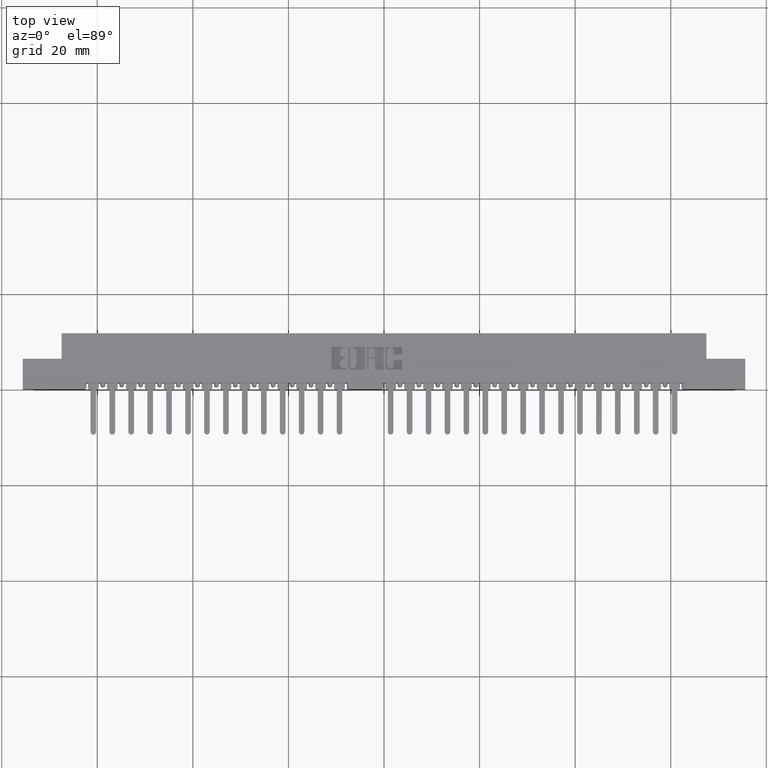
[diagram: clean part render]
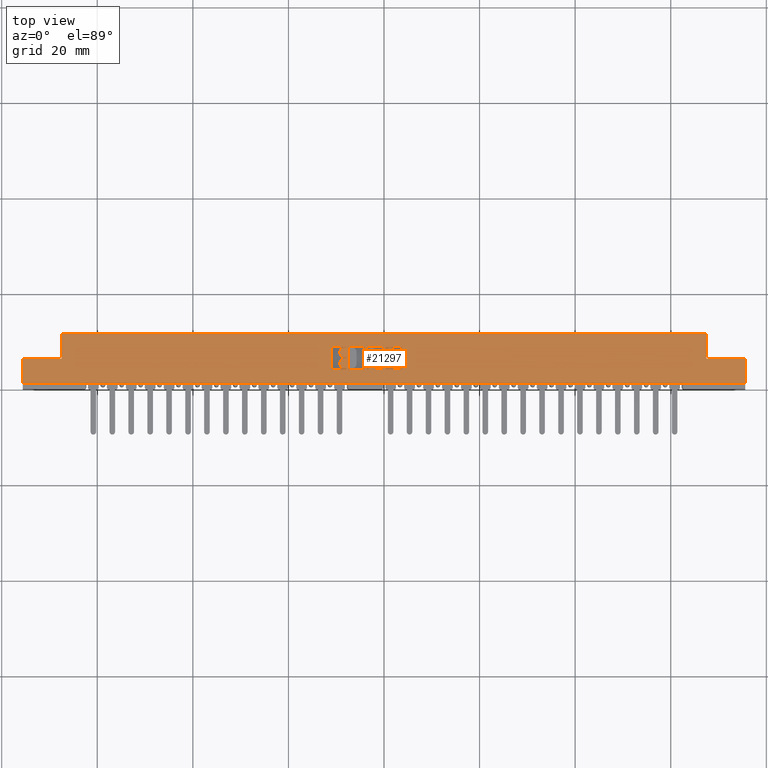
[diagram: same view with one face highlighted and labeled with its STEP entity id]
A machine part, top view. The second image highlights one B-rep face of the part: STEP entity #21297.
In plain terms, the highlighted planar face has unit normal (0, 0, -1).
Its self-contained STEP definition (entity closure, byte-faithful):
#15 = ORIENTED_EDGE ( 'NONE', *, *, #18994, .F. ) ;
#41 = VERTEX_POINT ( 'NONE', #10865 ) ;
#58 = LINE ( 'NONE', #21328, #5222 ) ;
#145 = CARTESIAN_POINT ( 'NONE',  ( 0.5216665538530216300, 8.733562208588935500, 5.486400000000000600 ) ) ;
#152 = ORIENTED_EDGE ( 'NONE', *, *, #569, .F. ) ;
#180 = CARTESIAN_POINT ( 'NONE',  ( 75.60310000000002600, 11.68399999999999900, 5.486400000000000600 ) ) ;
#206 = VERTEX_POINT ( 'NONE', #14117 ) ;
#229 = ORIENTED_EDGE ( 'NONE', *, *, #7270, .F. ) ;
#263 = AXIS2_PLACEMENT_3D ( 'NONE', #3339, #25180, #7731 ) ;
#299 = VECTOR ( 'NONE', #10105, 1000.000000000000000 ) ;
#360 = VERTEX_POINT ( 'NONE', #16790 ) ;
#378 = CARTESIAN_POINT ( 'NONE',  ( -0.0000000000000000000, 3.996519768234372300, 5.486400000000000600 ) ) ;
#398 = LINE ( 'NONE', #5368, #6963 ) ;
#425 = LINE ( 'NONE', #20434, #5958 ) ;
#569 = EDGE_CURVE ( 'NONE', #19284, #17320, #15610, .T. ) ;
#584 = LINE ( 'NONE', #1315, #21974 ) ;
#733 = CIRCLE ( 'NONE', #16205, 0.7978176741662845700 ) ;
#875 = CARTESIAN_POINT ( 'NONE',  ( -1.672332050102226700, 3.996519768234408700, 5.486400000000000600 ) ) ;
#981 = CIRCLE ( 'NONE', #24410, 0.2493180231766915800 ) ;
#1007 = DIRECTION ( 'NONE',  ( 1.000000000000000000, 0.0000000000000000000, 0.0000000000000000000 ) ) ;
#1024 = AXIS2_PLACEMENT_3D ( 'NONE', #10986, #23884, #24071 ) ;
#1062 = CARTESIAN_POINT ( 'NONE',  ( 2.204563210295245000, 7.225188168371333000, 5.486400000000000600 ) ) ;
#1076 = CARTESIAN_POINT ( 'NONE',  ( 3.463619227336394200, 6.015995755964040900, 5.486400000000000600 ) ) ;
#1143 = CARTESIAN_POINT ( 'NONE',  ( 75.60310000000002600, 6.350000000000001400, 5.486400000000000600 ) ) ;
#1150 = VERTEX_POINT ( 'NONE', #19151 ) ;
#1315 = CARTESIAN_POINT ( 'NONE',  ( -0.1639580098834929600, 0.0000000000000000000, 5.486400000000000600 ) ) ;
#1341 = CARTESIAN_POINT ( 'NONE',  ( 3.463619227335827900, 3.996519768234372300, 5.486400000000000600 ) ) ;
#1395 = DIRECTION ( 'NONE',  ( 1.000000000000000000, 0.0000000000000000000, 0.0000000000000000000 ) ) ;
#1426 = EDGE_CURVE ( 'NONE', #24237, #22205, #16189, .T. ) ;
#1442 = VERTEX_POINT ( 'NONE', #19407 ) ;
#1492 = VERTEX_POINT ( 'NONE', #4163 ) ;
#1584 = CIRCLE ( 'NONE', #8804, 0.2493180231764305100 ) ;
#1590 = CARTESIAN_POINT ( 'NONE',  ( -8.061106394003109800, 6.489700000000516100, 5.486400000000000600 ) ) ;
#1717 = ORIENTED_EDGE ( 'NONE', *, *, #18358, .F. ) ;
#1827 = VERTEX_POINT ( 'NONE', #25024 ) ;
#1836 = EDGE_CURVE ( 'NONE', #20401, #9936, #22394, .T. ) ;
#1979 = DIRECTION ( 'NONE',  ( -1.000000000000000000, 0.0000000000000000000, 0.0000000000000000000 ) ) ;
#2046 = EDGE_CURVE ( 'NONE', #12688, #1827, #14142, .T. ) ;
#2083 = ORIENTED_EDGE ( 'NONE', *, *, #27780, .T. ) ;
#2181 = CARTESIAN_POINT ( 'NONE',  ( -7.481441990117083700, 8.733562208588935500, 5.486400000000000600 ) ) ;
#2185 = DIRECTION ( 'NONE',  ( 1.000000000000000000, 0.0000000000000000000, 0.0000000000000000000 ) ) ;
#2188 = ORIENTED_EDGE ( 'NONE', *, *, #21360, .F. ) ;
#2367 = CARTESIAN_POINT ( 'NONE',  ( -7.886583777779455900, 6.489700000000516100, 5.486400000000000600 ) ) ;
#2409 = EDGE_CURVE ( 'NONE', #9628, #22615, #981, .T. ) ;
#2607 = FACE_BOUND ( 'NONE', #13108, .T. ) ;
#2623 = EDGE_CURVE ( 'NONE', #5769, #4653, #7202, .T. ) ;
#2667 = EDGE_CURVE ( 'NONE', #22477, #16025, #17872, .T. ) ;
#2747 = EDGE_CURVE ( 'NONE', #16031, #16907, #21314, .T. ) ;
#2752 = CARTESIAN_POINT ( 'NONE',  ( -0.0000000000000000000, 3.996519768234372300, 5.486400000000000600 ) ) ;
#2789 = CARTESIAN_POINT ( 'NONE',  ( -8.061106397048458700, 3.996519768234436700, 5.486400000000000600 ) ) ;
#2830 = CARTESIAN_POINT ( 'NONE',  ( -8.403918675870199800, 5.143382674847055500, 5.486400000000000600 ) ) ;
#2906 = DIRECTION ( 'NONE',  ( 1.000000000000000000, 0.0000000000000000000, 0.0000000000000000000 ) ) ;
#3105 = CARTESIAN_POINT ( 'NONE',  ( -10.95942841343065100, 0.0000000000000000000, 5.486400000000000600 ) ) ;
#3118 = CIRCLE ( 'NONE', #9012, 0.2493180231766005100 ) ;
#3135 = VERTEX_POINT ( 'NONE', #2181 ) ;
#3259 = DIRECTION ( 'NONE',  ( -0.0000000000000000000, 0.0000000000000000000, 1.000000000000000000 ) ) ;
#3333 = VERTEX_POINT ( 'NONE', #9064 ) ;
#3339 = CARTESIAN_POINT ( 'NONE',  ( 0.5216665538521552100, 4.245837791411063700, 5.486400000000000600 ) ) ;
#3385 = ORIENTED_EDGE ( 'NONE', *, *, #10903, .F. ) ;
#3392 = ORIENTED_EDGE ( 'NONE', *, *, #16788, .F. ) ;
#3400 = DIRECTION ( 'NONE',  ( -0.0000000000000000000, 0.0000000000000000000, 1.000000000000000000 ) ) ;
#3437 = ORIENTED_EDGE ( 'NONE', *, *, #19526, .F. ) ;
#3499 = DIRECTION ( 'NONE',  ( 0.0000000000000000000, 1.000000000000000000, -0.0000000000000000000 ) ) ;
#3575 = LINE ( 'NONE', #3605, #25689 ) ;
#3582 = CARTESIAN_POINT ( 'NONE',  ( 3.712937250513308000, 8.733562208588548300, 5.486400000000000600 ) ) ;
#3605 = CARTESIAN_POINT ( 'NONE',  ( 0.0000000000000000000, 3.996519768234408700, 5.486400000000000600 ) ) ;
#3640 = DIRECTION ( 'NONE',  ( -0.0000000000000000000, 0.0000000000000000000, 1.000000000000000000 ) ) ;
#3765 = ORIENTED_EDGE ( 'NONE', *, *, #18909, .T. ) ;
#3775 = CARTESIAN_POINT ( 'NONE',  ( -7.232123966939525400, 8.733562208588935500, 5.486400000000000600 ) ) ;
#3779 = ORIENTED_EDGE ( 'NONE', *, *, #17030, .F. ) ;
#3803 = DIRECTION ( 'NONE',  ( 1.000000000000000000, 0.0000000000000000000, 0.0000000000000000000 ) ) ;
#3855 = EDGE_CURVE ( 'NONE', #8294, #19284, #6074, .T. ) ;
#3872 = DIRECTION ( 'NONE',  ( -0.0000000000000000000, 0.0000000000000000000, 1.000000000000000000 ) ) ;
#3876 = ORIENTED_EDGE ( 'NONE', *, *, #2409, .F. ) ;
#3897 = CARTESIAN_POINT ( 'NONE',  ( -8.061106394002060000, 8.982880231766030100, 5.486400000000000600 ) ) ;
#3902 = DIRECTION ( 'NONE',  ( 1.000000000000000000, 0.0000000000000000000, 0.0000000000000000000 ) ) ;
#3954 = CARTESIAN_POINT ( 'NONE',  ( 67.46240000000001700, 11.68399999999999900, 5.486400000000000600 ) ) ;
#4012 = CIRCLE ( 'NONE', #17278, 0.2493180231766807300 ) ;
#4163 = CARTESIAN_POINT ( 'NONE',  ( -10.95942841343065100, 4.245837791411063700, 5.486400000000000600 ) ) ;
#4203 = CARTESIAN_POINT ( 'NONE',  ( 1.955245187118763300, 0.0000000000000000000, 5.486400000000000600 ) ) ;
#4233 = ORIENTED_EDGE ( 'NONE', *, *, #7579, .T. ) ;
#4242 = CARTESIAN_POINT ( 'NONE',  ( -8.061106394002060000, 8.808357615542810500, 5.486400000000000600 ) ) ;
#4261 = CARTESIAN_POINT ( 'NONE',  ( 67.46240000000001700, -13.66284510378421000, 5.486400000000000600 ) ) ;
#4290 = CARTESIAN_POINT ( 'NONE',  ( -9.201736350036080500, 7.836017325153202200, 5.486400000000000600 ) ) ;
#4427 = ORIENTED_EDGE ( 'NONE', *, *, #25599, .F. ) ;
#4653 = VERTEX_POINT ( 'NONE', #6472 ) ;
#4670 = ORIENTED_EDGE ( 'NONE', *, *, #25363, .F. ) ;
#4704 = DIRECTION ( 'NONE',  ( -0.0000000000000000000, 0.0000000000000000000, 1.000000000000000000 ) ) ;
#4708 = ORIENTED_EDGE ( 'NONE', *, *, #25853, .F. ) ;
#4718 = DIRECTION ( 'NONE',  ( 1.000000000000000000, 0.0000000000000000000, 0.0000000000000000000 ) ) ;
#4723 = VERTEX_POINT ( 'NONE', #6098 ) ;
#4821 = CARTESIAN_POINT ( 'NONE',  ( 3.463619227336304900, 5.766677732787847800, 5.486400000000000600 ) ) ;
#4942 = DIRECTION ( 'NONE',  ( 1.000000000000000000, 0.0000000000000000000, 0.0000000000000000000 ) ) ;
#4948 = CARTESIAN_POINT ( 'NONE',  ( 3.463619227335827900, 4.245837791411063700, 5.486400000000000600 ) ) ;
#5081 = EDGE_CURVE ( 'NONE', #25212, #1492, #15688, .T. ) ;
#5129 = VECTOR ( 'NONE', #28310, 1000.000000000000000 ) ;
#5135 = AXIS2_PLACEMENT_3D ( 'NONE', #7325, #18032, #15725 ) ;
#5145 = DIRECTION ( 'NONE',  ( 1.000000000000000000, 0.0000000000000000000, 0.0000000000000000000 ) ) ;
#5170 = CARTESIAN_POINT ( 'NONE',  ( -3.255501497273351600, 0.0000000000000000000, 5.486400000000000600 ) ) ;
#5203 = CARTESIAN_POINT ( 'NONE',  ( -9.201736350036080500, 7.462040290389401400, 5.486400000000000600 ) ) ;
#5222 = VECTOR ( 'NONE', #10192, 1000.000000000000000 ) ;
#5354 = CARTESIAN_POINT ( 'NONE',  ( 3.712937250512498000, 4.245837791410886900, 5.486400000000000600 ) ) ;
#5356 = AXIS2_PLACEMENT_3D ( 'NONE', #19827, #26404, #20512 ) ;
#5368 = CARTESIAN_POINT ( 'NONE',  ( -4.040853270279589200, 0.0000000000000000000, 5.486400000000000600 ) ) ;
#5393 = CARTESIAN_POINT ( 'NONE',  ( -75.60309999999999800, 1.295399999999999900, 5.486400000000000600 ) ) ;
#5429 = ORIENTED_EDGE ( 'NONE', *, *, #17255, .F. ) ;
#5449 = AXIS2_PLACEMENT_3D ( 'NONE', #3775, #26068, #21429 ) ;
#5540 = VERTEX_POINT ( 'NONE', #11865 ) ;
#5577 = CARTESIAN_POINT ( 'NONE',  ( 0.6213937631236051700, 5.012490712678305400, 5.486400000000000600 ) ) ;
#5598 = CIRCLE ( 'NONE', #19627, 0.2493180231764244300 ) ;
#5633 = CARTESIAN_POINT ( 'NONE',  ( 3.712937250513308000, 0.0000000000000000000, 5.486400000000000600 ) ) ;
#5712 = ORIENTED_EDGE ( 'NONE', *, *, #27543, .T. ) ;
#5719 = DIRECTION ( 'NONE',  ( 1.000000000000000000, 0.0000000000000000000, 0.0000000000000000000 ) ) ;
#5752 = VECTOR ( 'NONE', #13796, 1000.000000000000000 ) ;
#5769 = VERTEX_POINT ( 'NONE', #26258 ) ;
#5779 = CARTESIAN_POINT ( 'NONE',  ( 1.955245187118763300, 5.766677732787804300, 5.486400000000000600 ) ) ;
#5799 = CIRCLE ( 'NONE', #24362, 0.2493180231766477800 ) ;
#5835 = DIRECTION ( 'NONE',  ( -1.000000000000000000, 0.0000000000000000000, 0.0000000000000000000 ) ) ;
#5868 = LINE ( 'NONE', #9692, #13482 ) ;
#5958 = VECTOR ( 'NONE', #9480, 1000.000000000000000 ) ;
#5981 = DIRECTION ( 'NONE',  ( 1.000000000000000000, 0.0000000000000000000, 0.0000000000000000000 ) ) ;
#6002 = LINE ( 'NONE', #11100, #7039 ) ;
#6074 = CIRCLE ( 'NONE', #18525, 0.1745226162232719200 ) ;
#6098 = CARTESIAN_POINT ( 'NONE',  ( -8.403918675869800100, 8.633834999319486100, 5.486400000000000600 ) ) ;
#6122 = VECTOR ( 'NONE', #8957, 1000.000000000000000 ) ;
#6224 = PLANE ( 'NONE',  #19966 ) ;
#6268 = DIRECTION ( 'NONE',  ( -1.000000000000000000, 0.0000000000000000000, 0.0000000000000000000 ) ) ;
#6316 = EDGE_CURVE ( 'NONE', #20678, #4653, #14988, .T. ) ;
#6325 = CARTESIAN_POINT ( 'NONE',  ( -7.481441990117083700, 4.245837791411063700, 5.486400000000000600 ) ) ;
#6328 = CARTESIAN_POINT ( 'NONE',  ( 0.2723485306754631600, 4.245837791411063700, 5.486400000000000600 ) ) ;
#6390 = VERTEX_POINT ( 'NONE', #27799 ) ;
#6442 = LINE ( 'NONE', #7518, #5752 ) ;
#6472 = CARTESIAN_POINT ( 'NONE',  ( -8.403918675870199800, 4.345565000681637500, 5.486400000000000600 ) ) ;
#6493 = VERTEX_POINT ( 'NONE', #18075 ) ;
#6516 = CIRCLE ( 'NONE', #14411, 0.2493180231775632700 ) ;
#6543 = DIRECTION ( 'NONE',  ( -0.0000000000000000000, 0.0000000000000000000, 1.000000000000000000 ) ) ;
#6687 = DIRECTION ( 'NONE',  ( 1.000000000000000000, 0.0000000000000000000, 0.0000000000000000000 ) ) ;
#6849 = CARTESIAN_POINT ( 'NONE',  ( -0.4132760330599173900, 4.245837791410833600, 5.486400000000000600 ) ) ;
#6858 = DIRECTION ( 'NONE',  ( -0.0000000000000000000, 0.0000000000000000000, 1.000000000000000000 ) ) ;
#6859 = EDGE_CURVE ( 'NONE', #16267, #10057, #23900, .T. ) ;
#6879 = VERTEX_POINT ( 'NONE', #6328 ) ;
#6963 = VECTOR ( 'NONE', #18684, 1000.000000000000000 ) ;
#7039 = VECTOR ( 'NONE', #19637, 1000.000000000000000 ) ;
#7075 = CARTESIAN_POINT ( 'NONE',  ( -75.60309999999999800, 11.68399999999999900, 5.486400000000000600 ) ) ;
#7202 = LINE ( 'NONE', #8027, #19918 ) ;
#7243 = AXIS2_PLACEMENT_3D ( 'NONE', #26554, #11165, #13363 ) ;
#7263 = DIRECTION ( 'NONE',  ( -0.0000000000000000000, 0.0000000000000000000, 1.000000000000000000 ) ) ;
#7270 = EDGE_CURVE ( 'NONE', #11428, #25620, #22843, .T. ) ;
#7325 = CARTESIAN_POINT ( 'NONE',  ( 1.288319475121184600, 5.012490712678305400, 5.486400000000000600 ) ) ;
#7351 = CARTESIAN_POINT ( 'NONE',  ( -8.403918675870848200, 7.462040290389401400, 5.486400000000000600 ) ) ;
#7352 = DIRECTION ( 'NONE',  ( 1.000000000000000000, 0.0000000000000000000, 0.0000000000000000000 ) ) ;
#7502 = ORIENTED_EDGE ( 'NONE', *, *, #13053, .T. ) ;
#7518 = CARTESIAN_POINT ( 'NONE',  ( -9.201736350036080500, 0.0000000000000000000, 5.486400000000000600 ) ) ;
#7557 = DIRECTION ( 'NONE',  ( 1.000000000000000000, 0.0000000000000000000, 0.0000000000000000000 ) ) ;
#7579 = EDGE_CURVE ( 'NONE', #4723, #20884, #733, .T. ) ;
#7694 = DIRECTION ( 'NONE',  ( 0.0000000000000000000, -1.000000000000000000, 0.0000000000000000000 ) ) ;
#7722 = CARTESIAN_POINT ( 'NONE',  ( 75.60309999999999800, 1.295399999999999900, 5.486400000000000600 ) ) ;
#7731 = DIRECTION ( 'NONE',  ( 1.000000000000000000, 0.0000000000000000000, 0.0000000000000000000 ) ) ;
#7884 = CARTESIAN_POINT ( 'NONE',  ( 3.712937250512498000, 0.0000000000000000000, 5.486400000000000600 ) ) ;
#7973 = CARTESIAN_POINT ( 'NONE',  ( 75.60310000000002600, 6.350000000000001400, 5.486400000000000600 ) ) ;
#8007 = DIRECTION ( 'NONE',  ( -0.0000000000000000000, 0.0000000000000000000, 1.000000000000000000 ) ) ;
#8027 = CARTESIAN_POINT ( 'NONE',  ( -5.167589409310488600E-013, 4.345565000682636700, 5.486400000000000600 ) ) ;
#8043 = CARTESIAN_POINT ( 'NONE',  ( 3.463619227335770700, 8.733562208588956800, 5.486400000000000600 ) ) ;
#8053 = EDGE_CURVE ( 'NONE', #12437, #5769, #23486, .T. ) ;
#8215 = CARTESIAN_POINT ( 'NONE',  ( -3.604546729720377500, 4.171042384458057300, 5.486400000000000600 ) ) ;
#8294 = VERTEX_POINT ( 'NONE', #26677 ) ;
#8343 = DIRECTION ( 'NONE',  ( 0.0000000000000000000, -1.000000000000000000, 0.0000000000000000000 ) ) ;
#8355 = LINE ( 'NONE', #20394, #16650 ) ;
#8383 = ORIENTED_EDGE ( 'NONE', *, *, #27153, .F. ) ;
#8389 = CARTESIAN_POINT ( 'NONE',  ( -8.061106394002056400, 8.633834999319486100, 5.486400000000000600 ) ) ;
#8420 = ORIENTED_EDGE ( 'NONE', *, *, #25970, .F. ) ;
#8422 = AXIS2_PLACEMENT_3D ( 'NONE', #4242, #10855, #19865 ) ;
#8466 = LINE ( 'NONE', #5170, #14017 ) ;
#8582 = CARTESIAN_POINT ( 'NONE',  ( 0.0000000000000000000, 8.982880231766495500, 5.486400000000000600 ) ) ;
#8766 = AXIS2_PLACEMENT_3D ( 'NONE', #19768, #13432, #19675 ) ;
#8785 = DIRECTION ( 'NONE',  ( -0.0000000000000000000, -1.000000000000000000, -0.0000000000000000000 ) ) ;
#8786 = ORIENTED_EDGE ( 'NONE', *, *, #25679, .F. ) ;
#8804 = AXIS2_PLACEMENT_3D ( 'NONE', #16398, #11979, #7557 ) ;
#8828 = DIRECTION ( 'NONE',  ( -0.0000000000000000000, 1.000000000000000000, -0.0000000000000000000 ) ) ;
#8957 = DIRECTION ( 'NONE',  ( 0.0000000000000000000, -1.000000000000000000, 0.0000000000000000000 ) ) ;
#8966 = CARTESIAN_POINT ( 'NONE',  ( -7.232123966940392300, 3.996519768234372300, 5.486400000000000600 ) ) ;
#8980 = VECTOR ( 'NONE', #8785, 1000.000000000000000 ) ;
#9012 = AXIS2_PLACEMENT_3D ( 'NONE', #20257, #7263, #4718 ) ;
#9024 = VECTOR ( 'NONE', #20164, 1000.000000000000000 ) ;
#9038 = CARTESIAN_POINT ( 'NONE',  ( -4.290171293456286800, 3.996519768234372300, 5.486400000000000600 ) ) ;
#9064 = CARTESIAN_POINT ( 'NONE',  ( -4.040853270279589200, 4.245837791411063700, 5.486400000000000600 ) ) ;
#9197 = DIRECTION ( 'NONE',  ( 1.000000000000000000, 0.0000000000000000000, 0.0000000000000000000 ) ) ;
#9217 = FACE_BOUND ( 'NONE', #15132, .T. ) ;
#9364 = AXIS2_PLACEMENT_3D ( 'NONE', #2830, #10030, #11567 ) ;
#9438 = DIRECTION ( 'NONE',  ( -0.0000000000000000000, 0.0000000000000000000, 1.000000000000000000 ) ) ;
#9480 = DIRECTION ( 'NONE',  ( 0.0000000000000000000, 1.000000000000000000, -0.0000000000000000000 ) ) ;
#9505 = CIRCLE ( 'NONE', #20085, 0.2493180231766018200 ) ;
#9603 = CARTESIAN_POINT ( 'NONE',  ( -0.0000000000000000000, 7.225188168371333000, 5.486400000000000600 ) ) ;
#9625 = CARTESIAN_POINT ( 'NONE',  ( 2.204563210294978600, 6.015995755964040900, 5.486400000000000600 ) ) ;
#9626 = CARTESIAN_POINT ( 'NONE',  ( 1.955245187118430200, 7.474506191548147900, 5.486400000000000600 ) ) ;
#9628 = VERTEX_POINT ( 'NONE', #6325 ) ;
#9629 = CARTESIAN_POINT ( 'NONE',  ( 3.712937250512498000, 5.766677732787847800, 5.486400000000000600 ) ) ;
#9692 = CARTESIAN_POINT ( 'NONE',  ( -2.878871587260030200E-014, 3.996519768234494800, 5.486400000000000600 ) ) ;
#9719 = CARTESIAN_POINT ( 'NONE',  ( -0.0000000000000000000, 6.315177383776863000, 5.486400000000000600 ) ) ;
#9780 = DIRECTION ( 'NONE',  ( 1.000000000000000000, 0.0000000000000000000, 0.0000000000000000000 ) ) ;
#9803 = ORIENTED_EDGE ( 'NONE', *, *, #11830, .T. ) ;
#9877 = DIRECTION ( 'NONE',  ( 1.000000000000000000, 7.203446383881649800E-015, 0.0000000000000000000 ) ) ;
#9905 = EDGE_CURVE ( 'NONE', #10052, #13950, #6516, .T. ) ;
#9936 = VERTEX_POINT ( 'NONE', #22319 ) ;
#9945 = EDGE_CURVE ( 'NONE', #12688, #14016, #16174, .T. ) ;
#9951 = VERTEX_POINT ( 'NONE', #9626 ) ;
#10007 = VECTOR ( 'NONE', #18430, 1000.000000000000000 ) ;
#10030 = DIRECTION ( 'NONE',  ( -0.0000000000000000000, 0.0000000000000000000, 1.000000000000000000 ) ) ;
#10052 = VERTEX_POINT ( 'NONE', #27527 ) ;
#10057 = VERTEX_POINT ( 'NONE', #7973 ) ;
#10105 = DIRECTION ( 'NONE',  ( 0.0000000000000000000, 1.000000000000000000, -0.0000000000000000000 ) ) ;
#10122 = EDGE_CURVE ( 'NONE', #19327, #21802, #15839, .T. ) ;
#10162 = VECTOR ( 'NONE', #8828, 1000.000000000000000 ) ;
#10192 = DIRECTION ( 'NONE',  ( 0.0000000000000000000, 1.000000000000000000, -0.0000000000000000000 ) ) ;
#10255 = DIRECTION ( 'NONE',  ( -0.0000000000000000000, 0.0000000000000000000, 1.000000000000000000 ) ) ;
#10258 = AXIS2_PLACEMENT_3D ( 'NONE', #15687, #11627, #4942 ) ;
#10273 = VERTEX_POINT ( 'NONE', #3954 ) ;
#10320 = CARTESIAN_POINT ( 'NONE',  ( -0.0000000000000000000, 8.982880231765365800, 5.486400000000000600 ) ) ;
#10321 = CIRCLE ( 'NONE', #21040, 0.2493180231768147300 ) ;
#10337 = VECTOR ( 'NONE', #5145, 1000.000000000000000 ) ;
#10426 = ORIENTED_EDGE ( 'NONE', *, *, #12503, .F. ) ;
#10586 = ORIENTED_EDGE ( 'NONE', *, *, #6316, .T. ) ;
#10701 = CARTESIAN_POINT ( 'NONE',  ( -75.60309999999999800, 6.350000000000001400, 5.486400000000000600 ) ) ;
#10767 = ORIENTED_EDGE ( 'NONE', *, *, #27141, .F. ) ;
#10845 = AXIS2_PLACEMENT_3D ( 'NONE', #27811, #20969, #1007 ) ;
#10855 = DIRECTION ( 'NONE',  ( -0.0000000000000000000, 0.0000000000000000000, 1.000000000000000000 ) ) ;
#10865 = CARTESIAN_POINT ( 'NONE',  ( -0.1639580098834929600, 4.245837791410833600, 5.486400000000000600 ) ) ;
#10903 = EDGE_CURVE ( 'NONE', #19036, #11000, #16457, .T. ) ;
#10912 = CARTESIAN_POINT ( 'NONE',  ( 0.2723485306754631600, 0.0000000000000000000, 5.486400000000000600 ) ) ;
#10986 = CARTESIAN_POINT ( 'NONE',  ( -0.4132760330598883600, 8.733562208588942600, 5.486400000000000600 ) ) ;
#11000 = VERTEX_POINT ( 'NONE', #15070 ) ;
#11007 = CARTESIAN_POINT ( 'NONE',  ( 1.955245187118430200, 0.0000000000000000000, 5.486400000000000600 ) ) ;
#11072 = DIRECTION ( 'NONE',  ( -0.0000000000000000000, 0.0000000000000000000, 1.000000000000000000 ) ) ;
#11100 = CARTESIAN_POINT ( 'NONE',  ( -1.921650073278770500, 0.0000000000000000000, 5.486400000000000600 ) ) ;
#11165 = DIRECTION ( 'NONE',  ( -0.0000000000000000000, 0.0000000000000000000, 1.000000000000000000 ) ) ;
#11393 = VERTEX_POINT ( 'NONE', #25452 ) ;
#11428 = VERTEX_POINT ( 'NONE', #5354 ) ;
#11567 = DIRECTION ( 'NONE',  ( 1.000000000000000000, 0.0000000000000000000, 0.0000000000000000000 ) ) ;
#11599 = CARTESIAN_POINT ( 'NONE',  ( 2.204563210295245000, 7.474506191548147900, 5.486400000000000600 ) ) ;
#11627 = DIRECTION ( 'NONE',  ( -0.0000000000000000000, 0.0000000000000000000, 1.000000000000000000 ) ) ;
#11636 = CIRCLE ( 'NONE', #18051, 0.7978176741652316400 ) ;
#11676 = ORIENTED_EDGE ( 'NONE', *, *, #19333, .T. ) ;
#11709 = CIRCLE ( 'NONE', #26944, 0.1745226162236535600 ) ;
#11816 = DIRECTION ( 'NONE',  ( 1.000000000000000000, 0.0000000000000000000, 0.0000000000000000000 ) ) ;
#11830 = EDGE_CURVE ( 'NONE', #5540, #1150, #8466, .T. ) ;
#11865 = CARTESIAN_POINT ( 'NONE',  ( -3.255501497273351600, 6.065859360600057000, 5.486400000000000600 ) ) ;
#11929 = VERTEX_POINT ( 'NONE', #875 ) ;
#11979 = DIRECTION ( 'NONE',  ( -0.0000000000000000000, 0.0000000000000000000, 1.000000000000000000 ) ) ;
#12025 = CIRCLE ( 'NONE', #22886, 0.2493180231775587200 ) ;
#12032 = VERTEX_POINT ( 'NONE', #16860 ) ;
#12058 = CARTESIAN_POINT ( 'NONE',  ( -8.061106397049105300, 6.315177383776863000, 5.486400000000000600 ) ) ;
#12107 = VERTEX_POINT ( 'NONE', #20453 ) ;
#12168 = ORIENTED_EDGE ( 'NONE', *, *, #27069, .F. ) ;
#12178 = EDGE_CURVE ( 'NONE', #25620, #12316, #22816, .T. ) ;
#12316 = VERTEX_POINT ( 'NONE', #1076 ) ;
#12431 = AXIS2_PLACEMENT_3D ( 'NONE', #22044, #19815, #24082 ) ;
#12437 = VERTEX_POINT ( 'NONE', #19368 ) ;
#12457 = DIRECTION ( 'NONE',  ( 1.000000000000000000, 0.0000000000000000000, 0.0000000000000000000 ) ) ;
#12503 = EDGE_CURVE ( 'NONE', #21802, #16031, #23750, .T. ) ;
#12688 = VERTEX_POINT ( 'NONE', #28530 ) ;
#12728 = CARTESIAN_POINT ( 'NONE',  ( -9.201736350035616900, 5.143382674847055500, 5.486400000000000600 ) ) ;
#12730 = VERTEX_POINT ( 'NONE', #2367 ) ;
#12760 = VECTOR ( 'NONE', #22649, 1000.000000000000000 ) ;
#12969 = EDGE_CURVE ( 'NONE', #13505, #20884, #6442, .T. ) ;
#13019 = LINE ( 'NONE', #17022, #23664 ) ;
#13046 = VERTEX_POINT ( 'NONE', #7722 ) ;
#13053 = EDGE_CURVE ( 'NONE', #15739, #41, #584, .T. ) ;
#13108 = EDGE_LOOP ( 'NONE', ( #4233, #21496, #22433, #26466, #19148, #3392, #23701, #19921, #15459, #10586, #23328, #15210, #21912, #5429, #17323, #27973, #8786, #152, #27552, #8420, #28028 ) ) ;
#13145 = AXIS2_PLACEMENT_3D ( 'NONE', #23859, #3872, #1395 ) ;
#13152 = CARTESIAN_POINT ( 'NONE',  ( -8.403918675869796600, 7.836017325153202200, 5.486400000000000600 ) ) ;
#13183 = CARTESIAN_POINT ( 'NONE',  ( -59.34709999999999800, 1.295399999999999900, 5.486400000000000600 ) ) ;
#13363 = DIRECTION ( 'NONE',  ( 1.000000000000000000, 0.0000000000000000000, 0.0000000000000000000 ) ) ;
#13432 = DIRECTION ( 'NONE',  ( -0.0000000000000000000, 0.0000000000000000000, 1.000000000000000000 ) ) ;
#13482 = VECTOR ( 'NONE', #9877, 1000.000000000000000 ) ;
#13505 = VERTEX_POINT ( 'NONE', #5203 ) ;
#13518 = CARTESIAN_POINT ( 'NONE',  ( 3.463619227336693500, 8.982880231766495500, 5.486400000000000600 ) ) ;
#13606 = ORIENTED_EDGE ( 'NONE', *, *, #1426, .T. ) ;
#13796 = DIRECTION ( 'NONE',  ( 0.0000000000000000000, 1.000000000000000000, -0.0000000000000000000 ) ) ;
#13862 = DIRECTION ( 'NONE',  ( 1.000000000000000000, 0.0000000000000000000, 0.0000000000000000000 ) ) ;
#13950 = VERTEX_POINT ( 'NONE', #22932 ) ;
#13952 = LINE ( 'NONE', #21653, #17198 ) ;
#13953 = ORIENTED_EDGE ( 'NONE', *, *, #19698, .F. ) ;
#13979 = CARTESIAN_POINT ( 'NONE',  ( 0.5216665538521552100, 3.996519768234372300, 5.486400000000000600 ) ) ;
#14016 = VERTEX_POINT ( 'NONE', #12058 ) ;
#14017 = VECTOR ( 'NONE', #8343, 1000.000000000000000 ) ;
#14107 = VERTEX_POINT ( 'NONE', #5577 ) ;
#14117 = CARTESIAN_POINT ( 'NONE',  ( -3.355228706543946300, 8.982880231765365800, 5.486400000000000600 ) ) ;
#14142 = CIRCLE ( 'NONE', #12431, 0.7978176741647684500 ) ;
#14269 = DIRECTION ( 'NONE',  ( 1.000000000000000000, 0.0000000000000000000, 0.0000000000000000000 ) ) ;
#14349 = ORIENTED_EDGE ( 'NONE', *, *, #2667, .F. ) ;
#14357 = DIRECTION ( 'NONE',  ( 0.0000000000000000000, -1.000000000000000000, 0.0000000000000000000 ) ) ;
#14379 = VERTEX_POINT ( 'NONE', #17417 ) ;
#14411 = AXIS2_PLACEMENT_3D ( 'NONE', #24943, #16142, #11816 ) ;
#14415 = EDGE_CURVE ( 'NONE', #13046, #24455, #28448, .T. ) ;
#14572 = CIRCLE ( 'NONE', #17485, 0.1745226162236535600 ) ;
#14632 = CARTESIAN_POINT ( 'NONE',  ( -2.164219331584205600E-013, 6.315177383776758200, 5.486400000000000600 ) ) ;
#14660 = DIRECTION ( 'NONE',  ( 0.0000000000000000000, 1.000000000000000000, -0.0000000000000000000 ) ) ;
#14745 = FACE_BOUND ( 'NONE', #17915, .T. ) ;
#14835 = EDGE_CURVE ( 'NONE', #11393, #26977, #26355, .T. ) ;
#14870 = CARTESIAN_POINT ( 'NONE',  ( -8.061106394002060000, 8.808357615542810500, 5.486400000000000600 ) ) ;
#14935 = DIRECTION ( 'NONE',  ( -1.000000000000000000, 0.0000000000000000000, -0.0000000000000000000 ) ) ;
#14988 = CIRCLE ( 'NONE', #9364, 0.7978176741654172700 ) ;
#15070 = CARTESIAN_POINT ( 'NONE',  ( -67.46239999999998800, 11.68399999999999900, 5.486400000000000600 ) ) ;
#15132 = EDGE_LOOP ( 'NONE', ( #15793, #22315, #20748, #15, #3876, #10767, #4708, #12168 ) ) ;
#15210 = ORIENTED_EDGE ( 'NONE', *, *, #8053, .F. ) ;
#15233 = CARTESIAN_POINT ( 'NONE',  ( 3.712937250513308000, 7.474506191547980900, 5.486400000000000600 ) ) ;
#15380 = VECTOR ( 'NONE', #24189, 1000.000000000000000 ) ;
#15426 = CARTESIAN_POINT ( 'NONE',  ( 0.0000000000000000000, 8.982880231766495500, 5.486400000000000600 ) ) ;
#15459 = ORIENTED_EDGE ( 'NONE', *, *, #16125, .F. ) ;
#15472 = DIRECTION ( 'NONE',  ( 1.000000000000000000, 0.0000000000000000000, 0.0000000000000000000 ) ) ;
#15610 = LINE ( 'NONE', #21696, #25597 ) ;
#15687 = CARTESIAN_POINT ( 'NONE',  ( -8.061106394002461400, 4.171042384458057300, 5.486400000000000600 ) ) ;
#15688 = LINE ( 'NONE', #3105, #28087 ) ;
#15725 = DIRECTION ( 'NONE',  ( 1.000000000000000000, 0.0000000000000000000, 0.0000000000000000000 ) ) ;
#15739 = VERTEX_POINT ( 'NONE', #27704 ) ;
#15793 = ORIENTED_EDGE ( 'NONE', *, *, #9905, .F. ) ;
#15839 = LINE ( 'NONE', #5633, #299 ) ;
#16025 = VERTEX_POINT ( 'NONE', #26793 ) ;
#16031 = VERTEX_POINT ( 'NONE', #13518 ) ;
#16125 = EDGE_CURVE ( 'NONE', #20678, #1827, #425, .T. ) ;
#16142 = DIRECTION ( 'NONE',  ( -0.0000000000000000000, 0.0000000000000000000, 1.000000000000000000 ) ) ;
#16149 = EDGE_LOOP ( 'NONE', ( #13953, #19359, #1717, #8383, #13606, #17025, #3765, #14349, #2188, #26641, #25808, #229, #4427, #23908, #23645, #26140, #3437, #17928, #10426, #23686 ) ) ;
#16174 = LINE ( 'NONE', #9719, #10337 ) ;
#16189 = CIRCLE ( 'NONE', #13145, 0.6669257119974124600 ) ;
#16205 = AXIS2_PLACEMENT_3D ( 'NONE', #13152, #6858, #15472 ) ;
#16267 = VERTEX_POINT ( 'NONE', #17148 ) ;
#16351 = ORIENTED_EDGE ( 'NONE', *, *, #14835, .T. ) ;
#16398 = CARTESIAN_POINT ( 'NONE',  ( -3.355228706543946300, 8.733562208588935500, 5.486400000000000600 ) ) ;
#16416 = EDGE_CURVE ( 'NONE', #1442, #6879, #26308, .T. ) ;
#16423 = EDGE_CURVE ( 'NONE', #206, #28440, #16965, .T. ) ;
#16441 = VERTEX_POINT ( 'NONE', #10701 ) ;
#16457 = LINE ( 'NONE', #23632, #23710 ) ;
#16487 = DIRECTION ( 'NONE',  ( -1.000000000000000000, -1.189163988687022500E-013, 0.0000000000000000000 ) ) ;
#16510 = EDGE_CURVE ( 'NONE', #4723, #22588, #8355, .T. ) ;
#16593 = LINE ( 'NONE', #18063, #21419 ) ;
#16605 = EDGE_CURVE ( 'NONE', #3333, #10052, #398, .T. ) ;
#16606 = AXIS2_PLACEMENT_3D ( 'NONE', #20924, #3259, #27200 ) ;
#16642 = CIRCLE ( 'NONE', #10258, 0.1745226162236206100 ) ;
#16650 = VECTOR ( 'NONE', #13862, 1000.000000000000000 ) ;
#16742 = ORIENTED_EDGE ( 'NONE', *, *, #17131, .T. ) ;
#16788 = EDGE_CURVE ( 'NONE', #14016, #12730, #14572, .T. ) ;
#16790 = CARTESIAN_POINT ( 'NONE',  ( -7.232123966939525400, 8.982880231766495500, 5.486400000000000600 ) ) ;
#16821 = VECTOR ( 'NONE', #5719, 1000.000000000000000 ) ;
#16860 = CARTESIAN_POINT ( 'NONE',  ( -1.921650073278770500, 4.245837791411010400, 5.486400000000000600 ) ) ;
#16869 = CARTESIAN_POINT ( 'NONE',  ( -3.006183474096748100, 6.315177383776655200, 5.486400000000000600 ) ) ;
#16907 = VERTEX_POINT ( 'NONE', #21656 ) ;
#16965 = LINE ( 'NONE', #10320, #20054 ) ;
#16969 = CARTESIAN_POINT ( 'NONE',  ( -1.672332050102168300, 4.245837791411010400, 5.486400000000000600 ) ) ;
#17022 = CARTESIAN_POINT ( 'NONE',  ( -3.604546729720377500, 0.0000000000000000000, 5.486400000000000600 ) ) ;
#17025 = ORIENTED_EDGE ( 'NONE', *, *, #23976, .F. ) ;
#17030 = EDGE_CURVE ( 'NONE', #11000, #10273, #19347, .T. ) ;
#17075 = EDGE_CURVE ( 'NONE', #12316, #19584, #16593, .T. ) ;
#17119 = CIRCLE ( 'NONE', #7243, 0.2493180231762149600 ) ;
#17131 = EDGE_CURVE ( 'NONE', #26977, #5540, #3118, .T. ) ;
#17143 = CIRCLE ( 'NONE', #10845, 0.2493180231770940300 ) ;
#17148 = CARTESIAN_POINT ( 'NONE',  ( 67.46240000000001700, 6.350000000000001400, 5.486400000000000600 ) ) ;
#17198 = VECTOR ( 'NONE', #19706, 1000.000000000000000 ) ;
#17217 = CARTESIAN_POINT ( 'NONE',  ( -75.60309999999999800, 11.68399999999999900, 5.486400000000000600 ) ) ;
#17255 = EDGE_CURVE ( 'NONE', #18669, #28510, #5868, .T. ) ;
#17278 = AXIS2_PLACEMENT_3D ( 'NONE', #4948, #9438, #2906 ) ;
#17318 = DIRECTION ( 'NONE',  ( -0.0000000000000000000, 0.0000000000000000000, 1.000000000000000000 ) ) ;
#17320 = VERTEX_POINT ( 'NONE', #25108 ) ;
#17323 = ORIENTED_EDGE ( 'NONE', *, *, #18406, .F. ) ;
#17417 = CARTESIAN_POINT ( 'NONE',  ( -0.4132760330599173900, 3.996519768234408700, 5.486400000000000600 ) ) ;
#17446 = DIRECTION ( 'NONE',  ( -1.000000000000000000, 0.0000000000000000000, 0.0000000000000000000 ) ) ;
#17485 = AXIS2_PLACEMENT_3D ( 'NONE', #1590, #8007, #3803 ) ;
#17494 = AXIS2_PLACEMENT_3D ( 'NONE', #20084, #17502, #6687 ) ;
#17502 = DIRECTION ( 'NONE',  ( -0.0000000000000000000, 0.0000000000000000000, 1.000000000000000000 ) ) ;
#17514 = CARTESIAN_POINT ( 'NONE',  ( 0.0000000000000000000, 6.664222616224169100, 5.486400000000000600 ) ) ;
#17806 = ORIENTED_EDGE ( 'NONE', *, *, #23428, .F. ) ;
#17823 = FACE_OUTER_BOUND ( 'NONE', #18250, .T. ) ;
#17872 = LINE ( 'NONE', #4203, #6122 ) ;
#17915 = EDGE_LOOP ( 'NONE', ( #23129, #4670, #7502, #17806, #5712, #18528, #18160, #2083, #16351, #16742, #9803, #24547, #20738, #26227 ) ) ;
#17928 = ORIENTED_EDGE ( 'NONE', *, *, #2747, .F. ) ;
#18032 = DIRECTION ( 'NONE',  ( -0.0000000000000000000, 0.0000000000000000000, 1.000000000000000000 ) ) ;
#18051 = AXIS2_PLACEMENT_3D ( 'NONE', #7351, #22672, #9780 ) ;
#18063 = CARTESIAN_POINT ( 'NONE',  ( 0.0000000000000000000, 6.015995755964040900, 5.486400000000000600 ) ) ;
#18075 = CARTESIAN_POINT ( 'NONE',  ( -1.921650073278770500, 6.065859360600002900, 5.486400000000000600 ) ) ;
#18160 = ORIENTED_EDGE ( 'NONE', *, *, #22680, .T. ) ;
#18227 = DIRECTION ( 'NONE',  ( 1.000000000000000000, 0.0000000000000000000, 0.0000000000000000000 ) ) ;
#18250 = EDGE_LOOP ( 'NONE', ( #20424, #23446, #25435, #23564, #3779, #3385, #26779, #11676 ) ) ;
#18252 = CIRCLE ( 'NONE', #5135, 0.6669257119975790000 ) ;
#18331 = DIRECTION ( 'NONE',  ( -0.0000000000000000000, 0.0000000000000000000, 1.000000000000000000 ) ) ;
#18358 = EDGE_CURVE ( 'NONE', #9951, #20401, #10321, .T. ) ;
#18406 = EDGE_CURVE ( 'NONE', #1492, #18669, #28248, .T. ) ;
#18430 = DIRECTION ( 'NONE',  ( 1.000000000000000000, 0.0000000000000000000, 0.0000000000000000000 ) ) ;
#18507 = EDGE_CURVE ( 'NONE', #12032, #11929, #9505, .T. ) ;
#18525 = AXIS2_PLACEMENT_3D ( 'NONE', #14870, #3640, #19270 ) ;
#18528 = ORIENTED_EDGE ( 'NONE', *, *, #18507, .F. ) ;
#18600 = LINE ( 'NONE', #180, #8980 ) ;
#18669 = VERTEX_POINT ( 'NONE', #26329 ) ;
#18684 = DIRECTION ( 'NONE',  ( 0.0000000000000000000, 1.000000000000000000, -0.0000000000000000000 ) ) ;
#18775 = CARTESIAN_POINT ( 'NONE',  ( -67.46239999999998800, 6.350000000000001400, 5.486400000000000600 ) ) ;
#18794 = EDGE_CURVE ( 'NONE', #10057, #13046, #18600, .T. ) ;
#18898 = CIRCLE ( 'NONE', #1024, 0.2493180231764090300 ) ;
#18908 = EDGE_CURVE ( 'NONE', #23039, #20597, #26210, .T. ) ;
#18909 = EDGE_CURVE ( 'NONE', #14107, #16025, #18252, .T. ) ;
#18935 = CARTESIAN_POINT ( 'NONE',  ( -75.60309999999999800, 6.350000000000001400, 5.486400000000000600 ) ) ;
#18994 = EDGE_CURVE ( 'NONE', #22615, #25523, #23792, .T. ) ;
#19036 = VERTEX_POINT ( 'NONE', #18775 ) ;
#19127 = VECTOR ( 'NONE', #17446, 1000.000000000000000 ) ;
#19148 = ORIENTED_EDGE ( 'NONE', *, *, #19272, .F. ) ;
#19151 = CARTESIAN_POINT ( 'NONE',  ( -3.255501497273351600, 4.171042384458057300, 5.486400000000000600 ) ) ;
#19270 = DIRECTION ( 'NONE',  ( 1.000000000000000000, 0.0000000000000000000, 0.0000000000000000000 ) ) ;
#19272 = EDGE_CURVE ( 'NONE', #12730, #6390, #11709, .T. ) ;
#19284 = VERTEX_POINT ( 'NONE', #3897 ) ;
#19327 = VERTEX_POINT ( 'NONE', #15233 ) ;
#19333 = EDGE_CURVE ( 'NONE', #16441, #24455, #13952, .T. ) ;
#19347 = LINE ( 'NONE', #7075, #9024 ) ;
#19359 = ORIENTED_EDGE ( 'NONE', *, *, #1836, .F. ) ;
#19368 = CARTESIAN_POINT ( 'NONE',  ( -7.886583777778840300, 4.171042384458057300, 5.486400000000000600 ) ) ;
#19372 = EDGE_CURVE ( 'NONE', #6390, #12107, #22743, .T. ) ;
#19407 = CARTESIAN_POINT ( 'NONE',  ( 0.2723485306754631600, 8.733562208588935500, 5.486400000000000600 ) ) ;
#19526 = EDGE_CURVE ( 'NONE', #16907, #1442, #12025, .T. ) ;
#19584 = VERTEX_POINT ( 'NONE', #9625 ) ;
#19627 = AXIS2_PLACEMENT_3D ( 'NONE', #6849, #4704, #9197 ) ;
#19637 = DIRECTION ( 'NONE',  ( 0.0000000000000000000, 1.000000000000000000, -0.0000000000000000000 ) ) ;
#19675 = DIRECTION ( 'NONE',  ( 1.000000000000000000, 0.0000000000000000000, 0.0000000000000000000 ) ) ;
#19698 = EDGE_CURVE ( 'NONE', #9936, #19327, #5799, .T. ) ;
#19706 = DIRECTION ( 'NONE',  ( -0.0000000000000000000, -1.000000000000000000, -0.0000000000000000000 ) ) ;
#19735 = CARTESIAN_POINT ( 'NONE',  ( -7.481441990117083700, 0.0000000000000000000, 5.486400000000000600 ) ) ;
#19768 = CARTESIAN_POINT ( 'NONE',  ( -4.290171293456286800, 4.245837791411063700, 5.486400000000000600 ) ) ;
#19815 = DIRECTION ( 'NONE',  ( -0.0000000000000000000, 0.0000000000000000000, 1.000000000000000000 ) ) ;
#19827 = CARTESIAN_POINT ( 'NONE',  ( -3.430024113496911800, 4.171042384458057300, 5.486400000000000600 ) ) ;
#19865 = DIRECTION ( 'NONE',  ( 1.000000000000000000, 0.0000000000000000000, 0.0000000000000000000 ) ) ;
#19918 = VECTOR ( 'NONE', #16487, 1000.000000000000000 ) ;
#19921 = ORIENTED_EDGE ( 'NONE', *, *, #2046, .T. ) ;
#19966 = AXIS2_PLACEMENT_3D ( 'NONE', #17217, #24063, #14935 ) ;
#20054 = VECTOR ( 'NONE', #3902, 1000.000000000000000 ) ;
#20063 = DIRECTION ( 'NONE',  ( -1.000000000000000000, 0.0000000000000000000, 0.0000000000000000000 ) ) ;
#20084 = CARTESIAN_POINT ( 'NONE',  ( -2.170968096455214300, 6.065859360600240900, 5.486400000000000600 ) ) ;
#20085 = AXIS2_PLACEMENT_3D ( 'NONE', #16969, #25950, #5981 ) ;
#20126 = CIRCLE ( 'NONE', #17494, 0.2493180231764435300 ) ;
#20164 = DIRECTION ( 'NONE',  ( 1.000000000000000000, 0.0000000000000000000, 0.0000000000000000000 ) ) ;
#20175 = AXIS2_PLACEMENT_3D ( 'NONE', #4821, #18331, #7352 ) ;
#20257 = CARTESIAN_POINT ( 'NONE',  ( -3.006183474096748100, 6.065859360600057000, 5.486400000000000600 ) ) ;
#20394 = CARTESIAN_POINT ( 'NONE',  ( -0.0000000000000000000, 8.633834999319486100, 5.486400000000000600 ) ) ;
#20401 = VERTEX_POINT ( 'NONE', #1062 ) ;
#20424 = ORIENTED_EDGE ( 'NONE', *, *, #14415, .F. ) ;
#20434 = CARTESIAN_POINT ( 'NONE',  ( -9.201736350035616900, 0.0000000000000000000, 5.486400000000000600 ) ) ;
#20453 = CARTESIAN_POINT ( 'NONE',  ( -8.403918675870848200, 6.664222616224169100, 5.486400000000000600 ) ) ;
#20512 = DIRECTION ( 'NONE',  ( 1.000000000000000000, 0.0000000000000000000, 0.0000000000000000000 ) ) ;
#20597 = VERTEX_POINT ( 'NONE', #1341 ) ;
#20678 = VERTEX_POINT ( 'NONE', #12728 ) ;
#20738 = ORIENTED_EDGE ( 'NONE', *, *, #25185, .T. ) ;
#20748 = ORIENTED_EDGE ( 'NONE', *, *, #24236, .F. ) ;
#20796 = EDGE_CURVE ( 'NONE', #26923, #1150, #21932, .T. ) ;
#20884 = VERTEX_POINT ( 'NONE', #4290 ) ;
#20919 = FACE_BOUND ( 'NONE', #16149, .T. ) ;
#20924 = CARTESIAN_POINT ( 'NONE',  ( -10.71011039025395900, 4.245837791411063700, 5.486400000000000600 ) ) ;
#20969 = DIRECTION ( 'NONE',  ( -0.0000000000000000000, 0.0000000000000000000, 1.000000000000000000 ) ) ;
#21040 = AXIS2_PLACEMENT_3D ( 'NONE', #11599, #27010, #18227 ) ;
#21068 = DIRECTION ( 'NONE',  ( -1.000000000000000000, -3.427012734660361200E-014, 0.0000000000000000000 ) ) ;
#21160 = CARTESIAN_POINT ( 'NONE',  ( 3.463619227336660600, 7.474506191547980900, 5.486400000000000600 ) ) ;
#21172 = LINE ( 'NONE', #4261, #10162 ) ;
#21222 = LINE ( 'NONE', #11007, #15380 ) ;
#21297 = ADVANCED_FACE ( 'NONE', ( #9217, #2607, #17823, #20919, #14745 ), #6224, .F. ) ;
#21314 = LINE ( 'NONE', #15426, #22013 ) ;
#21328 = CARTESIAN_POINT ( 'NONE',  ( 0.6213937631236051700, 0.0000000000000000000, 5.486400000000000600 ) ) ;
#21360 = EDGE_CURVE ( 'NONE', #19584, #22477, #17119, .T. ) ;
#21419 = VECTOR ( 'NONE', #20063, 1000.000000000000000 ) ;
#21429 = DIRECTION ( 'NONE',  ( 1.000000000000000000, 0.0000000000000000000, 0.0000000000000000000 ) ) ;
#21496 = ORIENTED_EDGE ( 'NONE', *, *, #12969, .F. ) ;
#21653 = CARTESIAN_POINT ( 'NONE',  ( -75.60309999999999800, 11.68399999999999900, 5.486400000000000600 ) ) ;
#21656 = CARTESIAN_POINT ( 'NONE',  ( 0.5216665538530216300, 8.982880231766495500, 5.486400000000000600 ) ) ;
#21696 = CARTESIAN_POINT ( 'NONE',  ( 0.0000000000000000000, 8.982880231766030100, 5.486400000000000600 ) ) ;
#21755 = CARTESIAN_POINT ( 'NONE',  ( -8.061106394003109800, 6.489700000000516100, 5.486400000000000600 ) ) ;
#21802 = VERTEX_POINT ( 'NONE', #3582 ) ;
#21880 = DIRECTION ( 'NONE',  ( -0.0000000000000000000, 1.000000000000000000, -0.0000000000000000000 ) ) ;
#21912 = ORIENTED_EDGE ( 'NONE', *, *, #23732, .F. ) ;
#21932 = CIRCLE ( 'NONE', #5356, 0.1745226162235130600 ) ;
#21974 = VECTOR ( 'NONE', #14357, 1000.000000000000000 ) ;
#22013 = VECTOR ( 'NONE', #27067, 1000.000000000000000 ) ;
#22044 = CARTESIAN_POINT ( 'NONE',  ( -8.403918675870848200, 5.517359709612093400, 5.486400000000000600 ) ) ;
#22205 = VERTEX_POINT ( 'NONE', #27203 ) ;
#22315 = ORIENTED_EDGE ( 'NONE', *, *, #16605, .F. ) ;
#22319 = CARTESIAN_POINT ( 'NONE',  ( 3.463619227336660600, 7.225188168371333000, 5.486400000000000600 ) ) ;
#22394 = LINE ( 'NONE', #9603, #10007 ) ;
#22433 = ORIENTED_EDGE ( 'NONE', *, *, #26309, .T. ) ;
#22477 = VERTEX_POINT ( 'NONE', #5779 ) ;
#22588 = VERTEX_POINT ( 'NONE', #8389 ) ;
#22615 = VERTEX_POINT ( 'NONE', #8966 ) ;
#22649 = DIRECTION ( 'NONE',  ( 1.000000000000000000, 0.0000000000000000000, 0.0000000000000000000 ) ) ;
#22672 = DIRECTION ( 'NONE',  ( -0.0000000000000000000, 0.0000000000000000000, 1.000000000000000000 ) ) ;
#22680 = EDGE_CURVE ( 'NONE', #12032, #6493, #6002, .T. ) ;
#22743 = LINE ( 'NONE', #17514, #5129 ) ;
#22816 = CIRCLE ( 'NONE', #20175, 0.2493180231761928400 ) ;
#22841 = VECTOR ( 'NONE', #26408, 1000.000000000000000 ) ;
#22843 = LINE ( 'NONE', #7884, #23869 ) ;
#22883 = CIRCLE ( 'NONE', #263, 0.2493180231766918000 ) ;
#22886 = AXIS2_PLACEMENT_3D ( 'NONE', #145, #11072, #24649 ) ;
#22932 = CARTESIAN_POINT ( 'NONE',  ( -4.290171293455420800, 8.982880231766495500, 5.486400000000000600 ) ) ;
#22936 = LINE ( 'NONE', #19735, #27787 ) ;
#23039 = VERTEX_POINT ( 'NONE', #13979 ) ;
#23108 = VECTOR ( 'NONE', #14269, 1000.000000000000000 ) ;
#23129 = ORIENTED_EDGE ( 'NONE', *, *, #16423, .T. ) ;
#23131 = CARTESIAN_POINT ( 'NONE',  ( -10.95942841343065100, 8.733562208588935500, 5.486400000000000600 ) ) ;
#23230 = AXIS2_PLACEMENT_3D ( 'NONE', #28529, #6543, #2185 ) ;
#23328 = ORIENTED_EDGE ( 'NONE', *, *, #2623, .F. ) ;
#23428 = EDGE_CURVE ( 'NONE', #14379, #41, #5598, .T. ) ;
#23446 = ORIENTED_EDGE ( 'NONE', *, *, #18794, .F. ) ;
#23486 = CIRCLE ( 'NONE', #23230, 0.1745226162236206100 ) ;
#23564 = ORIENTED_EDGE ( 'NONE', *, *, #27838, .T. ) ;
#23595 = CARTESIAN_POINT ( 'NONE',  ( -3.604546729720377500, 8.733562208588935500, 5.486400000000000600 ) ) ;
#23632 = CARTESIAN_POINT ( 'NONE',  ( -67.46239999999998800, -13.66284510378421000, 5.486400000000000600 ) ) ;
#23645 = ORIENTED_EDGE ( 'NONE', *, *, #25112, .F. ) ;
#23664 = VECTOR ( 'NONE', #14660, 1000.000000000000000 ) ;
#23686 = ORIENTED_EDGE ( 'NONE', *, *, #10122, .F. ) ;
#23701 = ORIENTED_EDGE ( 'NONE', *, *, #9945, .F. ) ;
#23710 = VECTOR ( 'NONE', #21880, 1000.000000000000000 ) ;
#23732 = EDGE_CURVE ( 'NONE', #28510, #12437, #16642, .T. ) ;
#23750 = CIRCLE ( 'NONE', #26638, 0.2493180231775376800 ) ;
#23792 = LINE ( 'NONE', #2752, #23108 ) ;
#23859 = CARTESIAN_POINT ( 'NONE',  ( 1.288319475121018100, 7.966909287321251500, 5.486400000000000600 ) ) ;
#23869 = VECTOR ( 'NONE', #3499, 1000.000000000000000 ) ;
#23884 = DIRECTION ( 'NONE',  ( -0.0000000000000000000, 0.0000000000000000000, 1.000000000000000000 ) ) ;
#23900 = LINE ( 'NONE', #1143, #28378 ) ;
#23908 = ORIENTED_EDGE ( 'NONE', *, *, #18908, .F. ) ;
#23976 = EDGE_CURVE ( 'NONE', #14107, #22205, #58, .T. ) ;
#24063 = DIRECTION ( 'NONE',  ( 0.0000000000000000000, 0.0000000000000000000, -1.000000000000000000 ) ) ;
#24071 = DIRECTION ( 'NONE',  ( 1.000000000000000000, 0.0000000000000000000, 0.0000000000000000000 ) ) ;
#24082 = DIRECTION ( 'NONE',  ( 1.000000000000000000, 0.0000000000000000000, 0.0000000000000000000 ) ) ;
#24189 = DIRECTION ( 'NONE',  ( 0.0000000000000000000, -1.000000000000000000, 0.0000000000000000000 ) ) ;
#24236 = EDGE_CURVE ( 'NONE', #25523, #3333, #24898, .T. ) ;
#24237 = VERTEX_POINT ( 'NONE', #28557 ) ;
#24362 = AXIS2_PLACEMENT_3D ( 'NONE', #21160, #3400, #25341 ) ;
#24410 = AXIS2_PLACEMENT_3D ( 'NONE', #25896, #25714, #28006 ) ;
#24455 = VERTEX_POINT ( 'NONE', #5393 ) ;
#24547 = ORIENTED_EDGE ( 'NONE', *, *, #20796, .F. ) ;
#24649 = DIRECTION ( 'NONE',  ( 1.000000000000000000, 0.0000000000000000000, 0.0000000000000000000 ) ) ;
#24898 = CIRCLE ( 'NONE', #8766, 0.2493180231766941900 ) ;
#24943 = CARTESIAN_POINT ( 'NONE',  ( -4.290171293457153600, 8.733562208588933700, 5.486400000000000600 ) ) ;
#25017 = VECTOR ( 'NONE', #1979, 1000.000000000000000 ) ;
#25024 = CARTESIAN_POINT ( 'NONE',  ( -9.201736350035616900, 5.517359709612093400, 5.486400000000000600 ) ) ;
#25108 = CARTESIAN_POINT ( 'NONE',  ( -10.71011039025355800, 8.982880231766030100, 5.486400000000000600 ) ) ;
#25112 = EDGE_CURVE ( 'NONE', #6879, #23039, #22883, .T. ) ;
#25119 = CIRCLE ( 'NONE', #5449, 0.2493180231775589400 ) ;
#25180 = DIRECTION ( 'NONE',  ( -0.0000000000000000000, 0.0000000000000000000, 1.000000000000000000 ) ) ;
#25185 = EDGE_CURVE ( 'NONE', #26923, #27469, #13019, .T. ) ;
#25212 = VERTEX_POINT ( 'NONE', #23131 ) ;
#25341 = DIRECTION ( 'NONE',  ( 1.000000000000000000, 0.0000000000000000000, 0.0000000000000000000 ) ) ;
#25363 = EDGE_CURVE ( 'NONE', #15739, #28440, #18898, .T. ) ;
#25379 = LINE ( 'NONE', #8582, #19127 ) ;
#25435 = ORIENTED_EDGE ( 'NONE', *, *, #6859, .F. ) ;
#25452 = CARTESIAN_POINT ( 'NONE',  ( -2.170968096455204500, 6.315177383776683600, 5.486400000000000600 ) ) ;
#25523 = VERTEX_POINT ( 'NONE', #9038 ) ;
#25597 = VECTOR ( 'NONE', #6268, 1000.000000000000000 ) ;
#25599 = EDGE_CURVE ( 'NONE', #20597, #11428, #4012, .T. ) ;
#25620 = VERTEX_POINT ( 'NONE', #9629 ) ;
#25679 = EDGE_CURVE ( 'NONE', #17320, #25212, #17143, .T. ) ;
#25689 = VECTOR ( 'NONE', #5835, 1000.000000000000000 ) ;
#25714 = DIRECTION ( 'NONE',  ( -0.0000000000000000000, 0.0000000000000000000, 1.000000000000000000 ) ) ;
#25768 = CIRCLE ( 'NONE', #8422, 0.1745226162232719200 ) ;
#25792 = LINE ( 'NONE', #18935, #16821 ) ;
#25794 = EDGE_CURVE ( 'NONE', #16441, #19036, #25792, .T. ) ;
#25808 = ORIENTED_EDGE ( 'NONE', *, *, #12178, .F. ) ;
#25853 = EDGE_CURVE ( 'NONE', #360, #3135, #25119, .T. ) ;
#25896 = CARTESIAN_POINT ( 'NONE',  ( -7.232123966940392300, 4.245837791411063700, 5.486400000000000600 ) ) ;
#25950 = DIRECTION ( 'NONE',  ( -0.0000000000000000000, 0.0000000000000000000, 1.000000000000000000 ) ) ;
#25966 = CARTESIAN_POINT ( 'NONE',  ( -0.4132760330598297900, 8.982880231765365800, 5.486400000000000600 ) ) ;
#25970 = EDGE_CURVE ( 'NONE', #22588, #8294, #25768, .T. ) ;
#26005 = DIRECTION ( 'NONE',  ( 1.000000000000000000, 0.0000000000000000000, 0.0000000000000000000 ) ) ;
#26068 = DIRECTION ( 'NONE',  ( -0.0000000000000000000, 0.0000000000000000000, 1.000000000000000000 ) ) ;
#26140 = ORIENTED_EDGE ( 'NONE', *, *, #16416, .F. ) ;
#26210 = LINE ( 'NONE', #378, #12760 ) ;
#26226 = DIRECTION ( 'NONE',  ( 0.0000000000000000000, -1.000000000000000000, 0.0000000000000000000 ) ) ;
#26227 = ORIENTED_EDGE ( 'NONE', *, *, #26315, .F. ) ;
#26258 = CARTESIAN_POINT ( 'NONE',  ( -8.061106397048458700, 4.345565000681678400, 5.486400000000000600 ) ) ;
#26308 = LINE ( 'NONE', #10912, #22841 ) ;
#26309 = EDGE_CURVE ( 'NONE', #13505, #12107, #11636, .T. ) ;
#26315 = EDGE_CURVE ( 'NONE', #206, #27469, #1584, .T. ) ;
#26329 = CARTESIAN_POINT ( 'NONE',  ( -10.71011039025405200, 3.996519768234417600, 5.486400000000000600 ) ) ;
#26355 = LINE ( 'NONE', #14632, #27043 ) ;
#26404 = DIRECTION ( 'NONE',  ( -0.0000000000000000000, 0.0000000000000000000, 1.000000000000000000 ) ) ;
#26408 = DIRECTION ( 'NONE',  ( 0.0000000000000000000, -1.000000000000000000, 0.0000000000000000000 ) ) ;
#26466 = ORIENTED_EDGE ( 'NONE', *, *, #19372, .F. ) ;
#26554 = CARTESIAN_POINT ( 'NONE',  ( 2.204563210294978600, 5.766677732787826500, 5.486400000000000600 ) ) ;
#26638 = AXIS2_PLACEMENT_3D ( 'NONE', #8043, #10255, #12457 ) ;
#26641 = ORIENTED_EDGE ( 'NONE', *, *, #17075, .F. ) ;
#26677 = CARTESIAN_POINT ( 'NONE',  ( -7.886583777778788800, 8.808357615542810500, 5.486400000000000600 ) ) ;
#26779 = ORIENTED_EDGE ( 'NONE', *, *, #25794, .F. ) ;
#26793 = CARTESIAN_POINT ( 'NONE',  ( 1.955245187118763300, 5.012490712678305400, 5.486400000000000600 ) ) ;
#26923 = VERTEX_POINT ( 'NONE', #8215 ) ;
#26944 = AXIS2_PLACEMENT_3D ( 'NONE', #21755, #17318, #26005 ) ;
#26977 = VERTEX_POINT ( 'NONE', #16869 ) ;
#27010 = DIRECTION ( 'NONE',  ( -0.0000000000000000000, 0.0000000000000000000, 1.000000000000000000 ) ) ;
#27043 = VECTOR ( 'NONE', #21068, 1000.000000000000000 ) ;
#27067 = DIRECTION ( 'NONE',  ( -1.000000000000000000, 0.0000000000000000000, 0.0000000000000000000 ) ) ;
#27069 = EDGE_CURVE ( 'NONE', #13950, #360, #25379, .T. ) ;
#27141 = EDGE_CURVE ( 'NONE', #3135, #9628, #22936, .T. ) ;
#27153 = EDGE_CURVE ( 'NONE', #24237, #9951, #21222, .T. ) ;
#27200 = DIRECTION ( 'NONE',  ( 1.000000000000000000, 0.0000000000000000000, 0.0000000000000000000 ) ) ;
#27203 = CARTESIAN_POINT ( 'NONE',  ( 0.6213937631236051700, 7.966909287321251500, 5.486400000000000600 ) ) ;
#27469 = VERTEX_POINT ( 'NONE', #23595 ) ;
#27527 = CARTESIAN_POINT ( 'NONE',  ( -4.040853270279590100, 8.733562208588935500, 5.486400000000000600 ) ) ;
#27543 = EDGE_CURVE ( 'NONE', #14379, #11929, #3575, .T. ) ;
#27552 = ORIENTED_EDGE ( 'NONE', *, *, #3855, .F. ) ;
#27666 = DIRECTION ( 'NONE',  ( 1.000000000000000000, 0.0000000000000000000, -0.0000000000000000000 ) ) ;
#27704 = CARTESIAN_POINT ( 'NONE',  ( -0.1639580098834929600, 8.733562208588704600, 5.486400000000000600 ) ) ;
#27780 = EDGE_CURVE ( 'NONE', #6493, #11393, #20126, .T. ) ;
#27787 = VECTOR ( 'NONE', #26226, 1000.000000000000000 ) ;
#27799 = CARTESIAN_POINT ( 'NONE',  ( -8.061106394003109800, 6.664222616224169100, 5.486400000000000600 ) ) ;
#27811 = CARTESIAN_POINT ( 'NONE',  ( -10.71011039025355800, 8.733562208588935500, 5.486400000000000600 ) ) ;
#27838 = EDGE_CURVE ( 'NONE', #16267, #10273, #21172, .T. ) ;
#27973 = ORIENTED_EDGE ( 'NONE', *, *, #5081, .F. ) ;
#28006 = DIRECTION ( 'NONE',  ( 1.000000000000000000, 0.0000000000000000000, 0.0000000000000000000 ) ) ;
#28028 = ORIENTED_EDGE ( 'NONE', *, *, #16510, .F. ) ;
#28087 = VECTOR ( 'NONE', #7694, 1000.000000000000000 ) ;
#28248 = CIRCLE ( 'NONE', #16606, 0.2493180231766690100 ) ;
#28310 = DIRECTION ( 'NONE',  ( -1.000000000000000000, 0.0000000000000000000, 0.0000000000000000000 ) ) ;
#28378 = VECTOR ( 'NONE', #27666, 1000.000000000000000 ) ;
#28440 = VERTEX_POINT ( 'NONE', #25966 ) ;
#28448 = LINE ( 'NONE', #13183, #25017 ) ;
#28510 = VERTEX_POINT ( 'NONE', #2789 ) ;
#28529 = CARTESIAN_POINT ( 'NONE',  ( -8.061106394002461400, 4.171042384458057300, 5.486400000000000600 ) ) ;
#28530 = CARTESIAN_POINT ( 'NONE',  ( -8.403918675870848200, 6.315177383776863000, 5.486400000000000600 ) ) ;
#28557 = CARTESIAN_POINT ( 'NONE',  ( 1.955245187118430200, 7.966909275681201700, 5.486400000000000600 ) ) ;